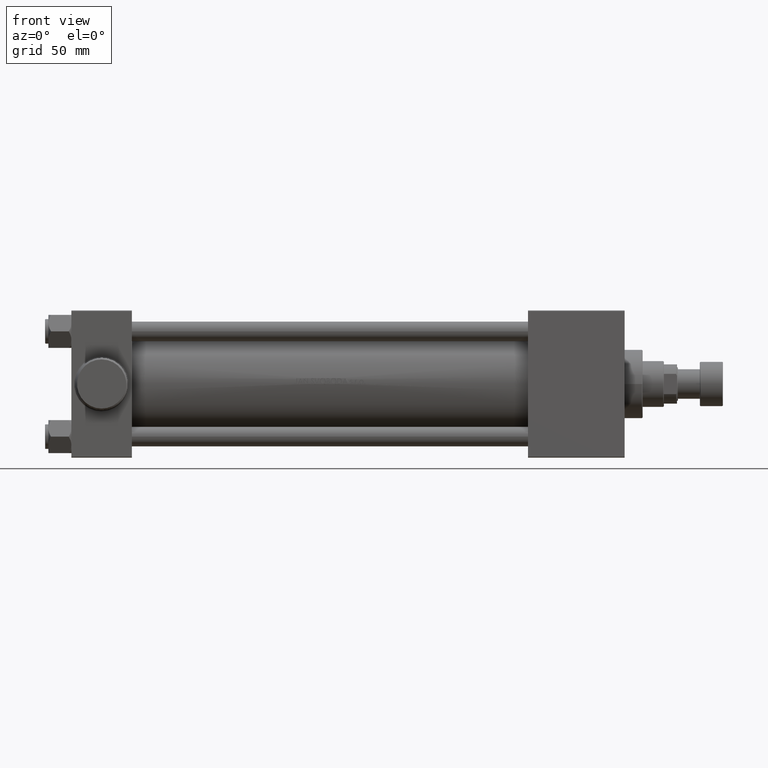
[diagram: clean part render]
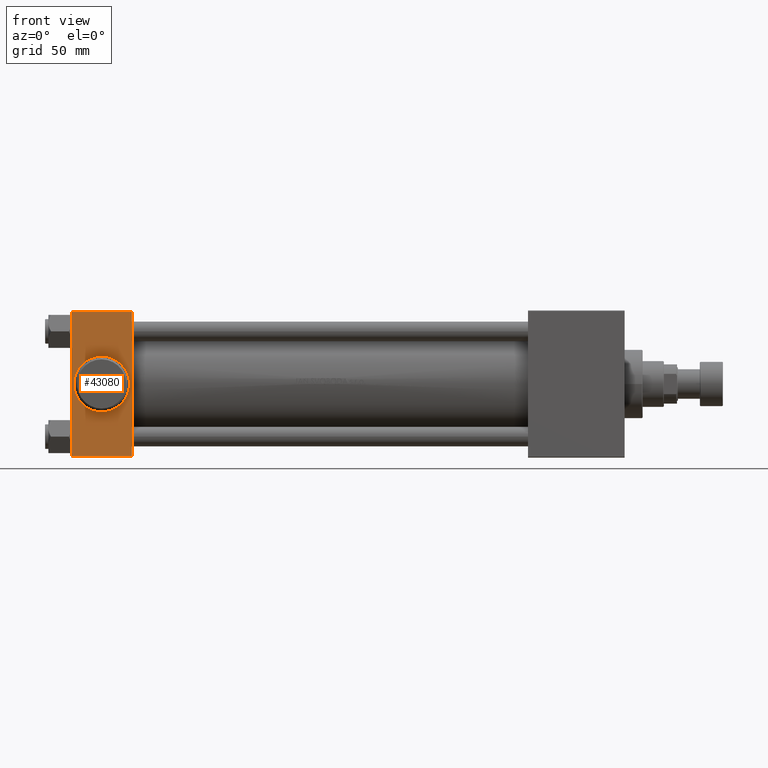
[diagram: same view with one face highlighted and labeled with its STEP entity id]
A machine part, front view. The second image highlights one B-rep face of the part: STEP entity #43080.
In plain terms, the highlighted planar face has unit normal (0, 1, 0).
Its self-contained STEP definition (entity closure, byte-faithful):
#109 = VERTEX_POINT ( 'NONE', #30084 ) ;
#150 = AXIS2_PLACEMENT_3D ( 'NONE', #4890, #1801, #41508 ) ;
#484 = CARTESIAN_POINT ( 'NONE',  ( 37.00000000000000000, -45.00000000000000711, 45.00000000000000000 ) ) ;
#1801 = DIRECTION ( 'NONE',  ( -0.000000000000000000, 1.000000000000000000, 7.709882115452478166E-17 ) ) ;
#2786 = VERTEX_POINT ( 'NONE', #31697 ) ;
#4273 = DIRECTION ( 'NONE',  ( 0.000000000000000000, 7.709882115452476934E-17, -1.000000000000000000 ) ) ;
#4725 = CARTESIAN_POINT ( 'NONE',  ( 37.00000000000000000, -45.00000000000000000, -44.49999999999998579 ) ) ;
#4890 = CARTESIAN_POINT ( 'NONE',  ( 18.50000000000000000, -45.00000000000000000, -3.479084304597930354E-15 ) ) ;
#6442 = DIRECTION ( 'NONE',  ( 0.000000000000000000, 7.709882115452476934E-17, -1.000000000000000000 ) ) ;
#7431 = EDGE_CURVE ( 'NONE', #2786, #8842, #18219, .T. ) ;
#8760 = ORIENTED_EDGE ( 'NONE', *, *, #30076, .F. ) ;
#8842 = VERTEX_POINT ( 'NONE', #43629 ) ;
#9726 = VERTEX_POINT ( 'NONE', #34628 ) ;
#10304 = EDGE_CURVE ( 'NONE', #9726, #109, #43399, .T. ) ;
#10467 = EDGE_CURVE ( 'NONE', #109, #2786, #38814, .T. ) ;
#12251 = CARTESIAN_POINT ( 'NONE',  ( 18.50000000000000000, -45.00000000000000000, -3.479084304597930354E-15 ) ) ;
#12272 = VECTOR ( 'NONE', #4273, 1000.000000000000000 ) ;
#12811 = FACE_OUTER_BOUND ( 'NONE', #16415, .T. ) ;
#12975 = EDGE_CURVE ( 'NONE', #34103, #41455, #20556, .T. ) ;
#14434 = LINE ( 'NONE', #484, #12272 ) ;
#15121 = DIRECTION ( 'NONE',  ( 1.000000000000000000, 0.000000000000000000, 0.000000000000000000 ) ) ;
#16131 = DIRECTION ( 'NONE',  ( 0.000000000000000000, -7.709882115452478166E-17, 1.000000000000000000 ) ) ;
#16334 = AXIS2_PLACEMENT_3D ( 'NONE', #12251, #26931, #45114 ) ;
#16415 = EDGE_LOOP ( 'NONE', ( #20622, #36678, #8760, #20016 ) ) ;
#17278 = EDGE_LOOP ( 'NONE', ( #20953, #27803 ) ) ;
#18219 = LINE ( 'NONE', #4725, #40770 ) ;
#20016 = ORIENTED_EDGE ( 'NONE', *, *, #10304, .T. ) ;
#20556 = CIRCLE ( 'NONE', #150, 17.00000000000000711 ) ;
#20622 = ORIENTED_EDGE ( 'NONE', *, *, #10467, .T. ) ;
#20953 = ORIENTED_EDGE ( 'NONE', *, *, #23663, .T. ) ;
#23663 = EDGE_CURVE ( 'NONE', #41455, #34103, #32055, .T. ) ;
#24262 = VECTOR ( 'NONE', #6442, 1000.000000000000000 ) ;
#26931 = DIRECTION ( 'NONE',  ( -0.000000000000000000, 1.000000000000000000, 7.709882115452478166E-17 ) ) ;
#27803 = ORIENTED_EDGE ( 'NONE', *, *, #12975, .T. ) ;
#29870 = FACE_BOUND ( 'NONE', #17278, .T. ) ;
#30076 = EDGE_CURVE ( 'NONE', #9726, #8842, #14434, .T. ) ;
#30084 = CARTESIAN_POINT ( 'NONE',  ( 0.000000000000000000, -45.00000000000000711, 44.49999999999997158 ) ) ;
#31697 = CARTESIAN_POINT ( 'NONE',  ( 0.000000000000000000, -45.00000000000000000, -44.49999999999995737 ) ) ;
#32055 = CIRCLE ( 'NONE', #16334, 17.00000000000000711 ) ;
#32253 = CARTESIAN_POINT ( 'NONE',  ( 18.50000000000000355, -45.00000000000000000, -17.00000000000001066 ) ) ;
#34103 = VERTEX_POINT ( 'NONE', #32253 ) ;
#34628 = CARTESIAN_POINT ( 'NONE',  ( 37.00000000000000000, -45.00000000000000711, 44.49999999999997158 ) ) ;
#34965 = CARTESIAN_POINT ( 'NONE',  ( 18.50000000000000000, -45.00000000000000000, 17.00000000000000355 ) ) ;
#36533 = DIRECTION ( 'NONE',  ( -1.000000000000000000, 0.000000000000000000, 0.000000000000000000 ) ) ;
#36678 = ORIENTED_EDGE ( 'NONE', *, *, #7431, .T. ) ;
#37641 = CARTESIAN_POINT ( 'NONE',  ( 37.00000000000000000, -45.00000000000000711, 45.00000000000000000 ) ) ;
#38814 = LINE ( 'NONE', #46355, #24262 ) ;
#39611 = CARTESIAN_POINT ( 'NONE',  ( 37.00000000000000000, -45.00000000000000711, 44.49999999999997158 ) ) ;
#40058 = VECTOR ( 'NONE', #36533, 1000.000000000000000 ) ;
#40716 = DIRECTION ( 'NONE',  ( -0.000000000000000000, 1.000000000000000000, 7.709882115452478166E-17 ) ) ;
#40770 = VECTOR ( 'NONE', #15121, 1000.000000000000000 ) ;
#41455 = VERTEX_POINT ( 'NONE', #34965 ) ;
#41508 = DIRECTION ( 'NONE',  ( 0.000000000000000000, 0.000000000000000000, 1.000000000000000000 ) ) ;
#43080 = ADVANCED_FACE ( 'NONE', ( #29870, #12811 ), #44274, .F. ) ;
#43399 = LINE ( 'NONE', #39611, #40058 ) ;
#43629 = CARTESIAN_POINT ( 'NONE',  ( 37.00000000000000000, -45.00000000000000000, -44.49999999999995737 ) ) ;
#44274 = PLANE ( 'NONE',  #44302 ) ;
#44302 = AXIS2_PLACEMENT_3D ( 'NONE', #37641, #40716, #16131 ) ;
#45114 = DIRECTION ( 'NONE',  ( 0.000000000000000000, 0.000000000000000000, 1.000000000000000000 ) ) ;
#46355 = CARTESIAN_POINT ( 'NONE',  ( 0.000000000000000000, -45.00000000000000711, 45.00000000000000000 ) ) ;